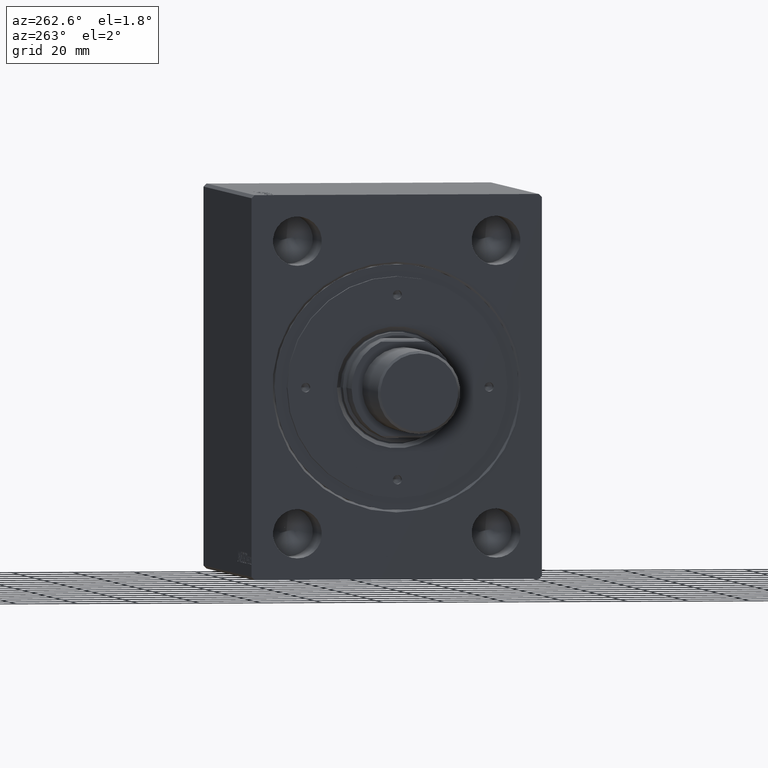
[diagram: clean part render]
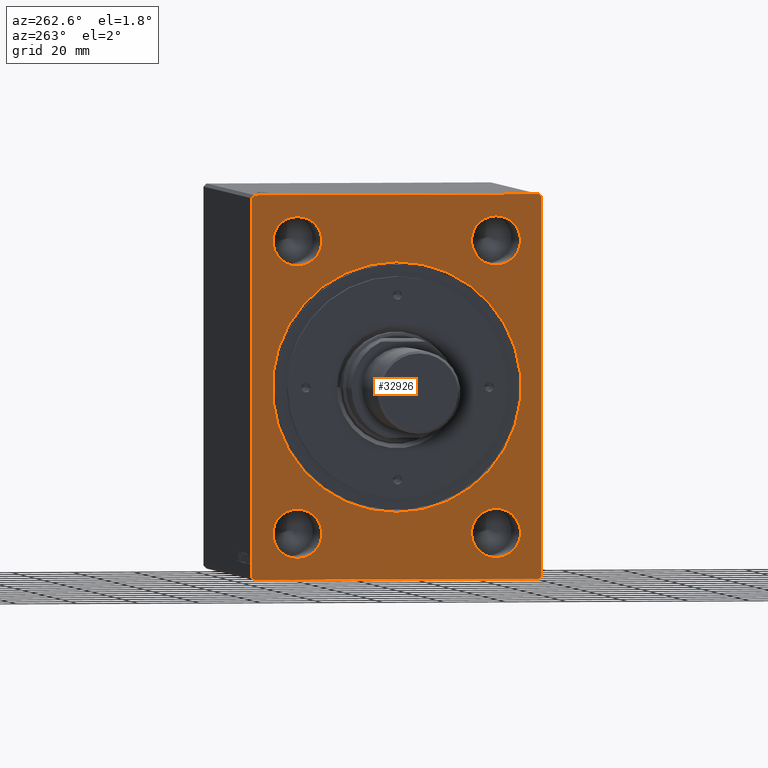
[diagram: same view with one face highlighted and labeled with its STEP entity id]
A machine part, auxiliary view. The second image highlights one B-rep face of the part: STEP entity #32926.
In plain terms, the highlighted planar face has unit normal (1, 0, 0).
Its self-contained STEP definition (entity closure, byte-faithful):
#130 = EDGE_CURVE ( 'NONE', #19446, #16424, #17819, .T. ) ;
#168 = FACE_OUTER_BOUND ( 'NONE', #25821, .T. ) ;
#464 = EDGE_CURVE ( 'NONE', #42387, #7311, #12835, .T. ) ;
#799 = EDGE_CURVE ( 'NONE', #38007, #12689, #27868, .T. ) ;
#1043 = CARTESIAN_POINT ( 'NONE',  ( 0.000000000000000000, 47.50000000000001421, -61.50000000000001421 ) ) ;
#1415 = ORIENTED_EDGE ( 'NONE', *, *, #130, .T. ) ;
#1472 = DIRECTION ( 'NONE',  ( 0.000000000000000000, -1.128275431529630729E-16, 1.000000000000000000 ) ) ;
#1655 = EDGE_CURVE ( 'NONE', #31115, #26641, #39299, .T. ) ;
#2136 = EDGE_CURVE ( 'NONE', #27395, #33995, #10635, .T. ) ;
#2142 = DIRECTION ( 'NONE',  ( -1.000000000000000000, -0.000000000000000000, -0.000000000000000000 ) ) ;
#2392 = DIRECTION ( 'NONE',  ( 1.000000000000000000, 0.000000000000000000, 0.000000000000000000 ) ) ;
#2420 = CARTESIAN_POINT ( 'NONE',  ( 0.000000000000000000, -47.50000000000001421, 61.49999999999997868 ) ) ;
#3012 = VECTOR ( 'NONE', #18835, 1000.000000000000114 ) ;
#3128 = DIRECTION ( 'NONE',  ( -1.000000000000000000, -0.000000000000000000, -0.000000000000000000 ) ) ;
#3305 = CARTESIAN_POINT ( 'NONE',  ( 4.898587196589409870E-16, 32.50000000000000000, 55.49999999999999289 ) ) ;
#3518 = VECTOR ( 'NONE', #26058, 1000.000000000000000 ) ;
#3550 = CARTESIAN_POINT ( 'NONE',  ( 4.898587196589409870E-16, -32.50000000000000000, 55.49999999999999289 ) ) ;
#3656 = CARTESIAN_POINT ( 'NONE',  ( 4.898587196589409870E-16, 32.50000000000000000, 39.50000000000000711 ) ) ;
#3708 = DIRECTION ( 'NONE',  ( 0.000000000000000000, 0.000000000000000000, 1.000000000000000000 ) ) ;
#3811 = VECTOR ( 'NONE', #1472, 1000.000000000000000 ) ;
#4223 = LINE ( 'NONE', #7158, #7080 ) ;
#4944 = AXIS2_PLACEMENT_3D ( 'NONE', #6478, #3128, #16791 ) ;
#5119 = CARTESIAN_POINT ( 'NONE',  ( 4.898587196589409870E-16, -32.50000000000000000, -39.50000000000000711 ) ) ;
#5174 = CARTESIAN_POINT ( 'NONE',  ( 0.000000000000000000, -46.50000000000001421, 62.49999999999997868 ) ) ;
#5723 = AXIS2_PLACEMENT_3D ( 'NONE', #26411, #30198, #9668 ) ;
#6255 = CARTESIAN_POINT ( 'NONE',  ( 0.000000000000000000, 0.000000000000000000, 40.70000000000001705 ) ) ;
#6478 = CARTESIAN_POINT ( 'NONE',  ( 4.898587196589409870E-16, 32.50000000000000000, 47.50000000000000000 ) ) ;
#6838 = EDGE_CURVE ( 'NONE', #24180, #29137, #30127, .T. ) ;
#6859 = EDGE_CURVE ( 'NONE', #33433, #31115, #42924, .T. ) ;
#7041 = DIRECTION ( 'NONE',  ( 0.000000000000000000, 0.7071067811865574537, 0.7071067811865376918 ) ) ;
#7080 = VECTOR ( 'NONE', #14331, 1000.000000000000000 ) ;
#7158 = CARTESIAN_POINT ( 'NONE',  ( 0.000000000000000000, -46.50000000000000000, -62.50000000000001421 ) ) ;
#7227 = DIRECTION ( 'NONE',  ( -1.000000000000000000, -0.000000000000000000, -0.000000000000000000 ) ) ;
#7311 = VERTEX_POINT ( 'NONE', #3305 ) ;
#7542 = FACE_BOUND ( 'NONE', #15894, .T. ) ;
#7766 = CIRCLE ( 'NONE', #9194, 7.999999999999992895 ) ;
#8019 = DIRECTION ( 'NONE',  ( -1.000000000000000000, -0.000000000000000000, -0.000000000000000000 ) ) ;
#8652 = CARTESIAN_POINT ( 'NONE',  ( 4.898587196589409870E-16, 32.50000000000000000, -47.50000000000000000 ) ) ;
#9073 = VERTEX_POINT ( 'NONE', #5119 ) ;
#9194 = AXIS2_PLACEMENT_3D ( 'NONE', #40624, #8019, #32129 ) ;
#9206 = DIRECTION ( 'NONE',  ( -1.000000000000000000, -0.000000000000000000, -0.000000000000000000 ) ) ;
#9282 = EDGE_CURVE ( 'NONE', #7311, #42387, #7766, .T. ) ;
#9567 = CARTESIAN_POINT ( 'NONE',  ( 0.000000000000000000, 0.000000000000000000, 0.000000000000000000 ) ) ;
#9576 = ORIENTED_EDGE ( 'NONE', *, *, #31331, .F. ) ;
#9668 = DIRECTION ( 'NONE',  ( 0.000000000000000000, 0.000000000000000000, 1.000000000000000000 ) ) ;
#10635 = LINE ( 'NONE', #40546, #30003 ) ;
#10905 = CARTESIAN_POINT ( 'NONE',  ( 0.000000000000000000, 0.000000000000000000, 0.000000000000000000 ) ) ;
#11022 = CARTESIAN_POINT ( 'NONE',  ( 0.000000000000000000, 0.000000000000000000, 0.000000000000000000 ) ) ;
#11727 = FACE_BOUND ( 'NONE', #31104, .T. ) ;
#11764 = LINE ( 'NONE', #1043, #3811 ) ;
#11783 = DIRECTION ( 'NONE',  ( 0.000000000000000000, -0.7071067811865474617, 0.7071067811865474617 ) ) ;
#12689 = VERTEX_POINT ( 'NONE', #37017 ) ;
#12817 = DIRECTION ( 'NONE',  ( 0.000000000000000000, 0.000000000000000000, 1.000000000000000000 ) ) ;
#12835 = CIRCLE ( 'NONE', #4944, 7.999999999999992895 ) ;
#13157 = CARTESIAN_POINT ( 'NONE',  ( 0.000000000000000000, -46.50000000000001421, 62.49999999999997868 ) ) ;
#13194 = EDGE_CURVE ( 'NONE', #30863, #25934, #13609, .T. ) ;
#13609 = CIRCLE ( 'NONE', #29270, 7.999999999999992895 ) ;
#13723 = DIRECTION ( 'NONE',  ( 1.000000000000000000, 0.000000000000000000, 0.000000000000000000 ) ) ;
#13819 = DIRECTION ( 'NONE',  ( -1.000000000000000000, -0.000000000000000000, -0.000000000000000000 ) ) ;
#14331 = DIRECTION ( 'NONE',  ( 0.000000000000000000, 1.000000000000000000, 1.492235248152092278E-16 ) ) ;
#14388 = CIRCLE ( 'NONE', #37188, 7.999999999999992895 ) ;
#14460 = VERTEX_POINT ( 'NONE', #31723 ) ;
#15146 = CARTESIAN_POINT ( 'NONE',  ( 0.000000000000000000, 47.50000000000000000, 61.49999999999998579 ) ) ;
#15458 = CARTESIAN_POINT ( 'NONE',  ( 0.000000000000000000, 47.50000000000000000, 61.49999999999998579 ) ) ;
#15559 = ORIENTED_EDGE ( 'NONE', *, *, #9282, .F. ) ;
#15894 = EDGE_LOOP ( 'NONE', ( #15559, #25714 ) ) ;
#16028 = CARTESIAN_POINT ( 'NONE',  ( 0.000000000000000000, 46.50000000000000000, 62.49999999999998579 ) ) ;
#16178 = CARTESIAN_POINT ( 'NONE',  ( 4.898587196589409870E-16, 32.50000000000000000, -47.50000000000000000 ) ) ;
#16392 = CIRCLE ( 'NONE', #41329, 40.70000000000001705 ) ;
#16424 = VERTEX_POINT ( 'NONE', #6255 ) ;
#16791 = DIRECTION ( 'NONE',  ( 0.000000000000000000, 0.000000000000000000, 1.000000000000000000 ) ) ;
#16911 = CARTESIAN_POINT ( 'NONE',  ( 0.000000000000000000, 46.50000000000000000, -62.50000000000000000 ) ) ;
#16986 = EDGE_LOOP ( 'NONE', ( #26906, #29181 ) ) ;
#17385 = CARTESIAN_POINT ( 'NONE',  ( 4.898587196589409870E-16, -32.50000000000000000, -47.50000000000000711 ) ) ;
#17819 = CIRCLE ( 'NONE', #32062, 40.70000000000001705 ) ;
#17867 = ORIENTED_EDGE ( 'NONE', *, *, #37630, .F. ) ;
#17908 = VECTOR ( 'NONE', #36376, 1000.000000000000000 ) ;
#17945 = EDGE_LOOP ( 'NONE', ( #41883, #37957 ) ) ;
#18835 = DIRECTION ( 'NONE',  ( 0.000000000000000000, -0.7071067811865474617, -0.7071067811865474617 ) ) ;
#18921 = EDGE_CURVE ( 'NONE', #9073, #14460, #35554, .T. ) ;
#19314 = CIRCLE ( 'NONE', #5723, 7.999999999999992895 ) ;
#19446 = VERTEX_POINT ( 'NONE', #20479 ) ;
#20479 = CARTESIAN_POINT ( 'NONE',  ( 0.000000000000000000, 4.984312472529728892E-15, -40.70000000000001705 ) ) ;
#21031 = EDGE_CURVE ( 'NONE', #16424, #19446, #16392, .T. ) ;
#21130 = CARTESIAN_POINT ( 'NONE',  ( 0.000000000000000000, -47.49999999999999289, -61.50000000000001421 ) ) ;
#22292 = AXIS2_PLACEMENT_3D ( 'NONE', #24873, #7227, #27560 ) ;
#22392 = CIRCLE ( 'NONE', #38812, 8.000000000000000000 ) ;
#22569 = ORIENTED_EDGE ( 'NONE', *, *, #13194, .F. ) ;
#23046 = DIRECTION ( 'NONE',  ( 0.000000000000000000, 0.000000000000000000, 1.000000000000000000 ) ) ;
#23354 = CARTESIAN_POINT ( 'NONE',  ( 0.000000000000000000, -46.50000000000000000, -62.50000000000001421 ) ) ;
#24180 = VERTEX_POINT ( 'NONE', #3550 ) ;
#24873 = CARTESIAN_POINT ( 'NONE',  ( 4.898587196589409870E-16, -32.50000000000000000, 47.50000000000000000 ) ) ;
#25016 = VECTOR ( 'NONE', #11783, 1000.000000000000114 ) ;
#25369 = VERTEX_POINT ( 'NONE', #23354 ) ;
#25417 = EDGE_CURVE ( 'NONE', #12689, #33433, #29401, .T. ) ;
#25714 = ORIENTED_EDGE ( 'NONE', *, *, #464, .F. ) ;
#25821 = EDGE_LOOP ( 'NONE', ( #33066, #17867, #40308, #41909, #43270, #28240, #33622, #43012 ) ) ;
#25832 = EDGE_CURVE ( 'NONE', #25369, #27395, #4223, .T. ) ;
#25934 = VERTEX_POINT ( 'NONE', #38865 ) ;
#26058 = DIRECTION ( 'NONE',  ( 0.000000000000000000, -1.000000000000000000, -7.461176240760460157E-17 ) ) ;
#26411 = CARTESIAN_POINT ( 'NONE',  ( 4.898587196589409870E-16, -32.50000000000000000, 47.50000000000000000 ) ) ;
#26641 = VERTEX_POINT ( 'NONE', #21130 ) ;
#26906 = ORIENTED_EDGE ( 'NONE', *, *, #18921, .F. ) ;
#27395 = VERTEX_POINT ( 'NONE', #16911 ) ;
#27424 = PLANE ( 'NONE',  #36513 ) ;
#27560 = DIRECTION ( 'NONE',  ( 0.000000000000000000, 0.000000000000000000, 1.000000000000000000 ) ) ;
#27868 = LINE ( 'NONE', #15146, #25016 ) ;
#28240 = ORIENTED_EDGE ( 'NONE', *, *, #1655, .F. ) ;
#28796 = EDGE_CURVE ( 'NONE', #29137, #24180, #19314, .T. ) ;
#29137 = VERTEX_POINT ( 'NONE', #31210 ) ;
#29181 = ORIENTED_EDGE ( 'NONE', *, *, #42037, .F. ) ;
#29270 = AXIS2_PLACEMENT_3D ( 'NONE', #16178, #33142, #12817 ) ;
#29401 = LINE ( 'NONE', #16028, #3518 ) ;
#29426 = VECTOR ( 'NONE', #34782, 1000.000000000000114 ) ;
#30003 = VECTOR ( 'NONE', #7041, 999.9999999999998863 ) ;
#30127 = CIRCLE ( 'NONE', #22292, 7.999999999999992895 ) ;
#30198 = DIRECTION ( 'NONE',  ( -1.000000000000000000, -0.000000000000000000, -0.000000000000000000 ) ) ;
#30771 = FACE_BOUND ( 'NONE', #34056, .T. ) ;
#30863 = VERTEX_POINT ( 'NONE', #40004 ) ;
#30994 = FACE_BOUND ( 'NONE', #17945, .T. ) ;
#31104 = EDGE_LOOP ( 'NONE', ( #31919, #1415 ) ) ;
#31115 = VERTEX_POINT ( 'NONE', #36159 ) ;
#31210 = CARTESIAN_POINT ( 'NONE',  ( 4.898587196589409870E-16, -32.50000000000000000, 39.50000000000000711 ) ) ;
#31331 = EDGE_CURVE ( 'NONE', #25934, #30863, #14388, .T. ) ;
#31445 = FACE_BOUND ( 'NONE', #16986, .T. ) ;
#31723 = CARTESIAN_POINT ( 'NONE',  ( 4.898587196589409870E-16, -32.50000000000000000, -55.50000000000000711 ) ) ;
#31919 = ORIENTED_EDGE ( 'NONE', *, *, #21031, .T. ) ;
#32062 = AXIS2_PLACEMENT_3D ( 'NONE', #11022, #13723, #34247 ) ;
#32129 = DIRECTION ( 'NONE',  ( 0.000000000000000000, 0.000000000000000000, 1.000000000000000000 ) ) ;
#32548 = DIRECTION ( 'NONE',  ( 0.000000000000000000, 0.000000000000000000, 1.000000000000000000 ) ) ;
#32926 = ADVANCED_FACE ( 'NONE', ( #7542, #31445, #30771, #30994, #11727, #168 ), #27424, .F. ) ;
#33066 = ORIENTED_EDGE ( 'NONE', *, *, #799, .F. ) ;
#33142 = DIRECTION ( 'NONE',  ( -1.000000000000000000, -0.000000000000000000, -0.000000000000000000 ) ) ;
#33433 = VERTEX_POINT ( 'NONE', #13157 ) ;
#33450 = DIRECTION ( 'NONE',  ( 0.000000000000000000, 0.000000000000000000, -1.000000000000000000 ) ) ;
#33622 = ORIENTED_EDGE ( 'NONE', *, *, #6859, .F. ) ;
#33980 = CARTESIAN_POINT ( 'NONE',  ( 4.898587196589409870E-16, -32.50000000000000000, -47.50000000000000711 ) ) ;
#33995 = VERTEX_POINT ( 'NONE', #42741 ) ;
#34056 = EDGE_LOOP ( 'NONE', ( #9576, #22569 ) ) ;
#34247 = DIRECTION ( 'NONE',  ( 0.000000000000000000, 0.000000000000000000, -1.000000000000000000 ) ) ;
#34782 = DIRECTION ( 'NONE',  ( 0.000000000000000000, 0.7071067811865451302, -0.7071067811865500152 ) ) ;
#35006 = CARTESIAN_POINT ( 'NONE',  ( 0.000000000000000000, -47.49999999999999289, -61.50000000000001421 ) ) ;
#35554 = CIRCLE ( 'NONE', #41265, 8.000000000000000000 ) ;
#36159 = CARTESIAN_POINT ( 'NONE',  ( 0.000000000000000000, -47.50000000000001421, 61.49999999999997868 ) ) ;
#36376 = DIRECTION ( 'NONE',  ( 0.000000000000000000, 1.692413147294445970E-16, -1.000000000000000000 ) ) ;
#36513 = AXIS2_PLACEMENT_3D ( 'NONE', #10905, #37689, #41255 ) ;
#37017 = CARTESIAN_POINT ( 'NONE',  ( 0.000000000000000000, 46.50000000000000000, 62.49999999999998579 ) ) ;
#37188 = AXIS2_PLACEMENT_3D ( 'NONE', #8652, #2142, #32548 ) ;
#37630 = EDGE_CURVE ( 'NONE', #33995, #38007, #11764, .T. ) ;
#37689 = DIRECTION ( 'NONE',  ( 1.000000000000000000, 0.000000000000000000, 0.000000000000000000 ) ) ;
#37957 = ORIENTED_EDGE ( 'NONE', *, *, #28796, .F. ) ;
#38007 = VERTEX_POINT ( 'NONE', #15458 ) ;
#38631 = EDGE_CURVE ( 'NONE', #26641, #25369, #39009, .T. ) ;
#38812 = AXIS2_PLACEMENT_3D ( 'NONE', #17385, #13819, #3708 ) ;
#38865 = CARTESIAN_POINT ( 'NONE',  ( 4.898587196589409870E-16, 32.50000000000000000, -39.50000000000000711 ) ) ;
#39009 = LINE ( 'NONE', #35006, #29426 ) ;
#39299 = LINE ( 'NONE', #2420, #17908 ) ;
#40004 = CARTESIAN_POINT ( 'NONE',  ( 4.898587196589409870E-16, 32.50000000000000000, -55.49999999999999289 ) ) ;
#40308 = ORIENTED_EDGE ( 'NONE', *, *, #2136, .F. ) ;
#40546 = CARTESIAN_POINT ( 'NONE',  ( 0.000000000000000000, 46.50000000000000000, -62.50000000000000000 ) ) ;
#40624 = CARTESIAN_POINT ( 'NONE',  ( 4.898587196589409870E-16, 32.50000000000000000, 47.50000000000000000 ) ) ;
#41255 = DIRECTION ( 'NONE',  ( 0.000000000000000000, 0.000000000000000000, -1.000000000000000000 ) ) ;
#41265 = AXIS2_PLACEMENT_3D ( 'NONE', #33980, #9206, #23046 ) ;
#41329 = AXIS2_PLACEMENT_3D ( 'NONE', #9567, #2392, #33450 ) ;
#41883 = ORIENTED_EDGE ( 'NONE', *, *, #6838, .F. ) ;
#41909 = ORIENTED_EDGE ( 'NONE', *, *, #25832, .F. ) ;
#42037 = EDGE_CURVE ( 'NONE', #14460, #9073, #22392, .T. ) ;
#42387 = VERTEX_POINT ( 'NONE', #3656 ) ;
#42741 = CARTESIAN_POINT ( 'NONE',  ( 0.000000000000000000, 47.50000000000001421, -61.50000000000001421 ) ) ;
#42924 = LINE ( 'NONE', #5174, #3012 ) ;
#43012 = ORIENTED_EDGE ( 'NONE', *, *, #25417, .F. ) ;
#43270 = ORIENTED_EDGE ( 'NONE', *, *, #38631, .F. ) ;